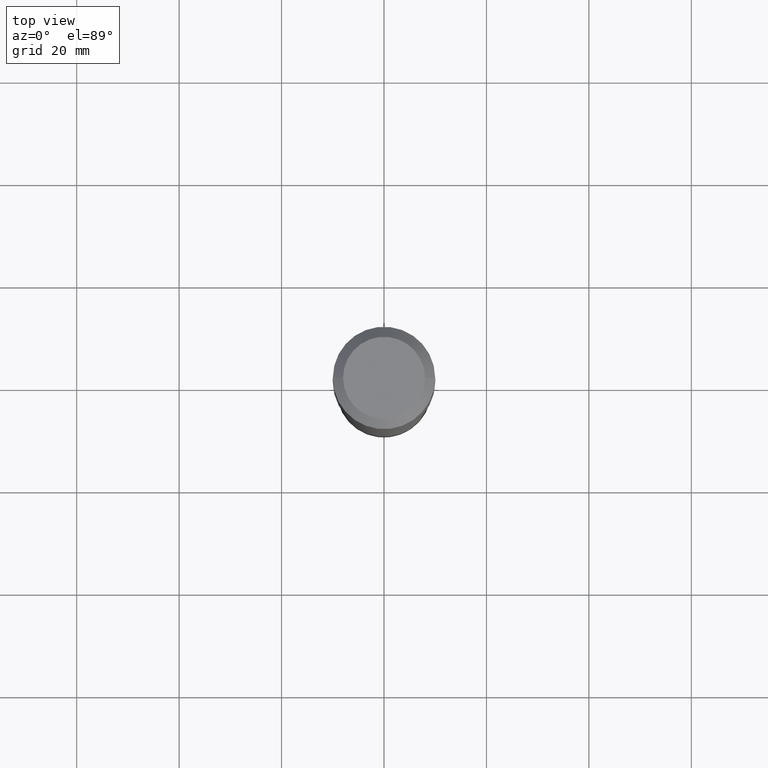
[diagram: clean part render]
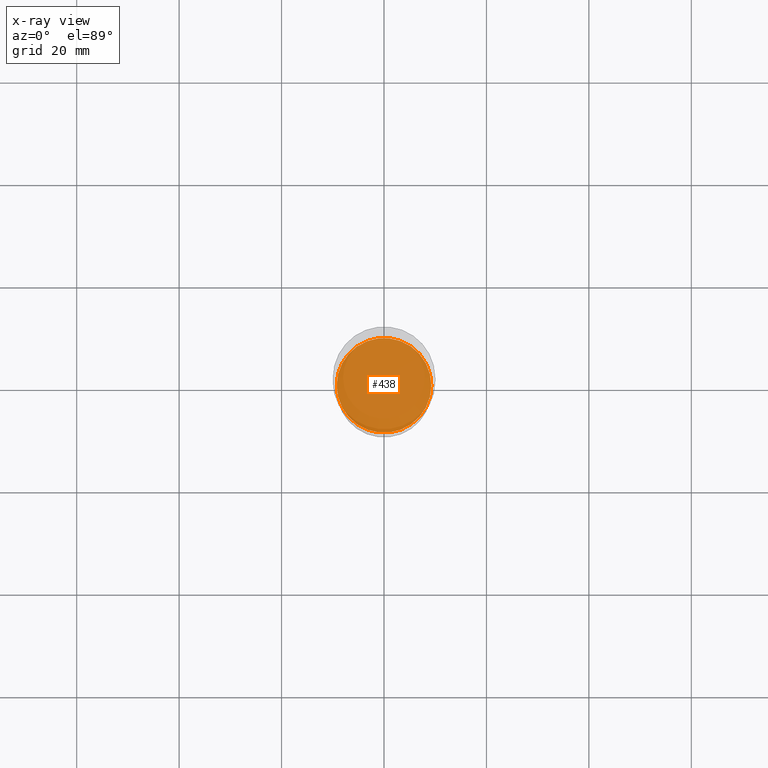
[diagram: x-ray — body ghosted, one internal face saturated and labeled with its STEP entity id]
A machine part, top view, then the same camera in x-ray: the body is ghosted and one INTERNAL B-rep face — a face not visible from any outside direction — is saturated and labeled: STEP entity #438.
In plain terms, the highlighted planar face has unit normal (-0, 0, 1).
Its self-contained STEP definition (entity closure, byte-faithful):
#28 = VERTEX_POINT ( 'NONE', #518 ) ;
#50 = CARTESIAN_POINT ( 'NONE',  ( 8.328777660105338684E-29, -1.189128714383198387E-14, -3.405800000000000161 ) ) ;
#74 = AXIS2_PLACEMENT_3D ( 'NONE', #260, #412, #453 ) ;
#78 = AXIS2_PLACEMENT_3D ( 'NONE', #461, #498, #139 ) ;
#116 = EDGE_LOOP ( 'NONE', ( #154, #159 ) ) ;
#128 = DIRECTION ( 'NONE',  ( 1.000000000000000000, -6.982962677686269866E-15, 0.000000000000000000 ) ) ;
#139 = DIRECTION ( 'NONE',  ( 1.000000000000000000, -6.982962677686269866E-15, 0.000000000000000000 ) ) ;
#154 = ORIENTED_EDGE ( 'NONE', *, *, #340, .F. ) ;
#159 = ORIENTED_EDGE ( 'NONE', *, *, #504, .F. ) ;
#162 = PLANE ( 'NONE',  #74 ) ;
#169 = CARTESIAN_POINT ( 'NONE',  ( 0.3636500000000000288, -1.443064152157259684E-14, -3.405800000000000161 ) ) ;
#260 = CARTESIAN_POINT ( 'NONE',  ( 8.328777660105338684E-29, -1.189128714383198387E-14, -3.405800000000000161 ) ) ;
#297 = FACE_OUTER_BOUND ( 'NONE', #116, .T. ) ;
#340 = EDGE_CURVE ( 'NONE', #514, #28, #507, .T. ) ;
#361 = DIRECTION ( 'NONE',  ( -2.445468806185136597E-29, 3.491481338843145583E-15, 1.000000000000000000 ) ) ;
#363 = AXIS2_PLACEMENT_3D ( 'NONE', #50, #361, #128 ) ;
#412 = DIRECTION ( 'NONE',  ( -2.438088387897960049E-29, 3.491481338843145188E-15, 1.000000000000000000 ) ) ;
#438 = ADVANCED_FACE ( 'NONE', ( #297 ), #162, .F. ) ;
#453 = DIRECTION ( 'NONE',  ( 1.000000000000000000, -6.982962677686265922E-15, 4.876176775795935793E-29 ) ) ;
#461 = CARTESIAN_POINT ( 'NONE',  ( 8.328777660105338684E-29, -1.189128714383198387E-14, -3.405800000000000161 ) ) ;
#497 = CIRCLE ( 'NONE', #363, 0.3636500000000000288 ) ;
#498 = DIRECTION ( 'NONE',  ( -2.445468806185136597E-29, 3.491481338843145583E-15, 1.000000000000000000 ) ) ;
#504 = EDGE_CURVE ( 'NONE', #28, #514, #497, .T. ) ;
#507 = CIRCLE ( 'NONE', #78, 0.3636500000000000288 ) ;
#514 = VERTEX_POINT ( 'NONE', #169 ) ;
#518 = CARTESIAN_POINT ( 'NONE',  ( -0.3636500000000000288, -9.304749258066267350E-15, -3.405800000000000161 ) ) ;